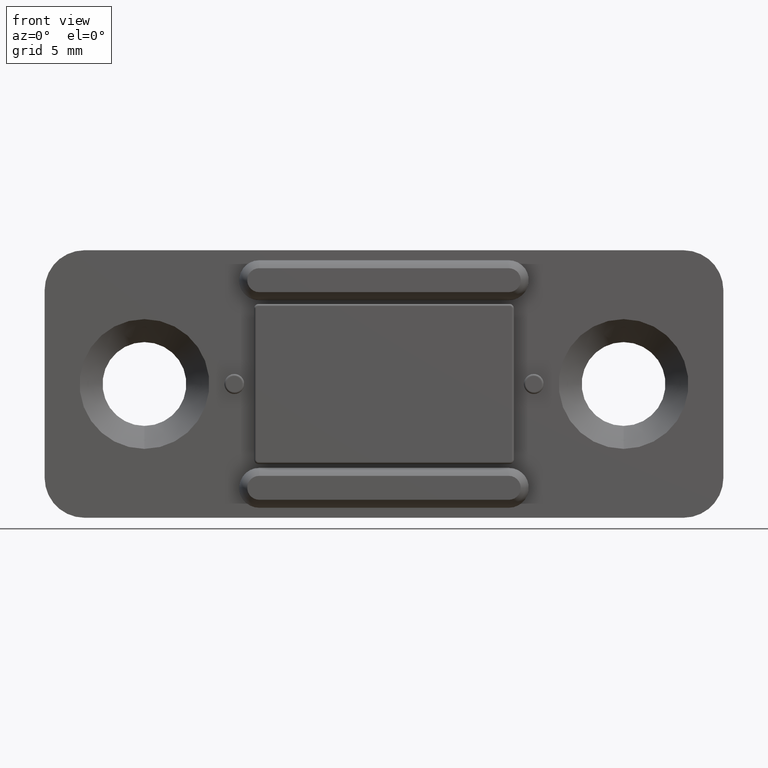
[diagram: clean part render]
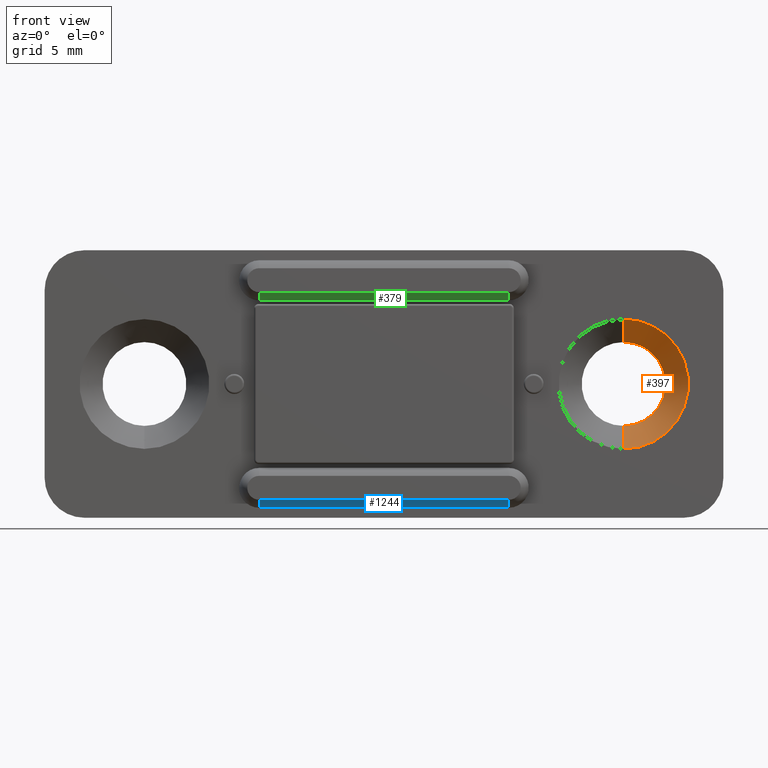
[diagram: same view with three faces highlighted in distinct colors, each labeled with its STEP entity id]
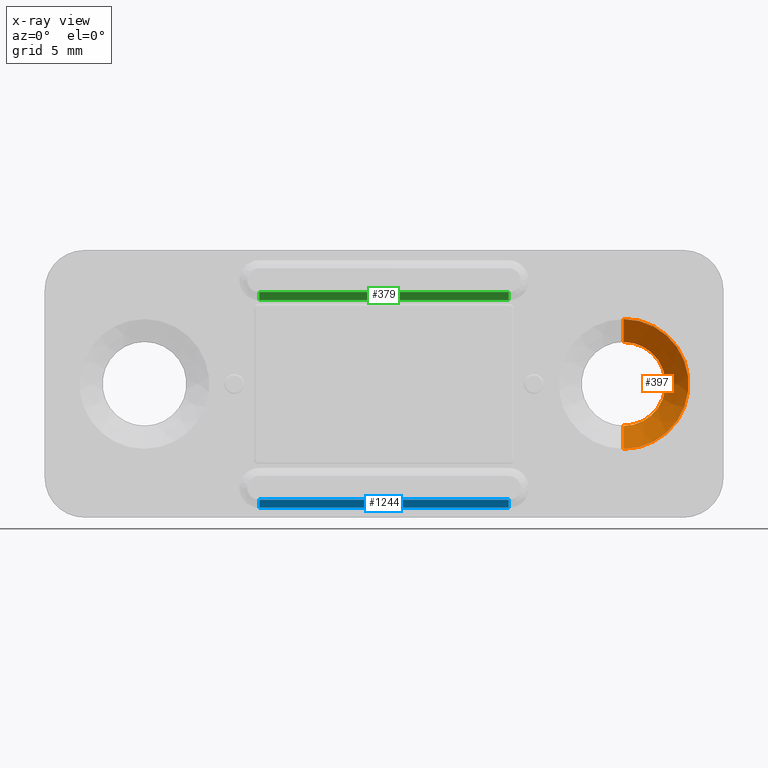
[diagram: x-ray of the same camera — body ghosted, the three highlighted faces saturated]
A machine part, front view with three faces highlighted in distinct colors.
The next image is the same camera in x-ray (body ghosted, the three faces saturated) — at least one of them is partly hidden behind the body in this view.
Their STEP definitions:

[orange] entity #397 — the highlighted conical surface has half-angle 45 deg.
#85 = CARTESIAN_POINT ( 'NONE',  ( 12.00000000000000000, 0.0000000000000000000, 0.0000000000000000000 ) ) ;
#223 = ORIENTED_EDGE ( 'NONE', *, *, #767, .T. ) ;
#287 = ORIENTED_EDGE ( 'NONE', *, *, #596, .F. ) ;
#397 = ADVANCED_FACE ( 'NONE', ( #1184 ), #1134, .F. ) ;
#596 = EDGE_CURVE ( 'NONE', #635, #1140, #1213, .T. ) ;
#635 = VERTEX_POINT ( 'NONE', #1943 ) ;
#767 = EDGE_CURVE ( 'NONE', #947, #1140, #1297, .T. ) ;
#791 = CARTESIAN_POINT ( 'NONE',  ( 12.00000000000000000, 1.150000000000289900, -2.100000000003889900 ) ) ;
#851 = VECTOR ( 'NONE', #937, 999.9999999999998900 ) ;
#863 = CARTESIAN_POINT ( 'NONE',  ( 12.00000000000000000, 0.0000000000000000000, -3.250000000004204600 ) ) ;
#926 = CARTESIAN_POINT ( 'NONE',  ( 12.00000000000000000, 1.150000000000289900, 2.100000000003889900 ) ) ;
#937 = DIRECTION ( 'NONE',  ( 0.0000000000000000000, -0.7071067811865391400, -0.7071067811865560100 ) ) ;
#947 = VERTEX_POINT ( 'NONE', #791 ) ;
#977 = ORIENTED_EDGE ( 'NONE', *, *, #1883, .F. ) ;
#1046 = DIRECTION ( 'NONE',  ( 0.0000000000000000000, 1.000000000000000000, 0.0000000000000000000 ) ) ;
#1134 = CONICAL_SURFACE ( 'NONE', #2095, 3.250000000004204600, 0.7853981633974602700 ) ;
#1140 = VERTEX_POINT ( 'NONE', #863 ) ;
#1164 = EDGE_CURVE ( 'NONE', #1625, #947, #1451, .T. ) ;
#1173 = DIRECTION ( 'NONE',  ( 8.659560562355037600E-017, -0.7071067811865391400, 0.7071067811865560100 ) ) ;
#1184 = FACE_OUTER_BOUND ( 'NONE', #2017, .T. ) ;
#1197 = VECTOR ( 'NONE', #1173, 999.9999999999998900 ) ;
#1201 = CARTESIAN_POINT ( 'NONE',  ( 12.00000000000000000, 0.0000000000000000000, -3.250000000004204600 ) ) ;
#1213 = CIRCLE ( 'NONE', #1817, 3.250000000004204600 ) ;
#1231 = DIRECTION ( 'NONE',  ( 0.0000000000000000000, 0.0000000000000000000, 1.000000000000000000 ) ) ;
#1234 = CARTESIAN_POINT ( 'NONE',  ( 12.00000000000000000, 0.0000000000000000000, 0.0000000000000000000 ) ) ;
#1241 = ORIENTED_EDGE ( 'NONE', *, *, #1164, .T. ) ;
#1297 = LINE ( 'NONE', #1201, #851 ) ;
#1341 = CARTESIAN_POINT ( 'NONE',  ( 12.00000000000000000, 0.0000000000000000000, 3.250000000004204600 ) ) ;
#1451 = CIRCLE ( 'NONE', #2078, 2.100000000003889900 ) ;
#1550 = CARTESIAN_POINT ( 'NONE',  ( 12.00000000000000000, 1.150000000000289900, 0.0000000000000000000 ) ) ;
#1625 = VERTEX_POINT ( 'NONE', #926 ) ;
#1655 = LINE ( 'NONE', #1341, #1197 ) ;
#1746 = DIRECTION ( 'NONE',  ( 0.0000000000000000000, -1.000000000000000000, 0.0000000000000000000 ) ) ;
#1764 = DIRECTION ( 'NONE',  ( 0.0000000000000000000, 0.0000000000000000000, -1.000000000000000000 ) ) ;
#1817 = AXIS2_PLACEMENT_3D ( 'NONE', #85, #2105, #1231 ) ;
#1883 = EDGE_CURVE ( 'NONE', #1625, #635, #1655, .T. ) ;
#1937 = DIRECTION ( 'NONE',  ( 0.0000000000000000000, 0.0000000000000000000, 1.000000000000000000 ) ) ;
#1943 = CARTESIAN_POINT ( 'NONE',  ( 12.00000000000000000, 0.0000000000000000000, 3.250000000004204600 ) ) ;
#2017 = EDGE_LOOP ( 'NONE', ( #977, #1241, #223, #287 ) ) ;
#2078 = AXIS2_PLACEMENT_3D ( 'NONE', #1550, #1046, #1937 ) ;
#2095 = AXIS2_PLACEMENT_3D ( 'NONE', #1234, #1746, #1764 ) ;
#2105 = DIRECTION ( 'NONE',  ( 0.0000000000000000000, 1.000000000000000000, 0.0000000000000000000 ) ) ;

[blue] entity #1244 — the highlighted cylindrical surface (edge-blend (fillet) strip) has radius 1 mm, axis along (-1, 0, 0).
#12 = VECTOR ( 'NONE', #516, 1000.000000000000000 ) ;
#15 = VERTEX_POINT ( 'NONE', #520 ) ;
#56 = CARTESIAN_POINT ( 'NONE',  ( 6.249999999999889900, -0.3999999999991815100, -6.200000000000000200 ) ) ;
#180 = CIRCLE ( 'NONE', #805, 1.000000000000000000 ) ;
#198 = DIRECTION ( 'NONE',  ( -1.000000000000000000, 0.0000000000000000000, 0.0000000000000000000 ) ) ;
#253 = VERTEX_POINT ( 'NONE', #56 ) ;
#395 = ORIENTED_EDGE ( 'NONE', *, *, #1606, .F. ) ;
#431 = CARTESIAN_POINT ( 'NONE',  ( -6.250000000000000000, -1.200000000000045900, -5.799999999998839900 ) ) ;
#516 = DIRECTION ( 'NONE',  ( -1.000000000000000000, -0.0000000000000000000, -0.0000000000000000000 ) ) ;
#520 = CARTESIAN_POINT ( 'NONE',  ( -6.250000000000000000, -0.3999999999991815100, -6.200000000000000200 ) ) ;
#551 = EDGE_CURVE ( 'NONE', #253, #15, #603, .T. ) ;
#603 = LINE ( 'NONE', #1516, #12 ) ;
#609 = CARTESIAN_POINT ( 'NONE',  ( 0.0000000000000000000, -1.200000000000045900, -5.799999999998839900 ) ) ;
#654 = ORIENTED_EDGE ( 'NONE', *, *, #551, .F. ) ;
#799 = FACE_OUTER_BOUND ( 'NONE', #1217, .T. ) ;
#805 = AXIS2_PLACEMENT_3D ( 'NONE', #844, #854, #817 ) ;
#817 = DIRECTION ( 'NONE',  ( 0.0000000000000000000, 0.0000000000000000000, -1.000000000000000000 ) ) ;
#820 = EDGE_CURVE ( 'NONE', #836, #2069, #1754, .T. ) ;
#836 = VERTEX_POINT ( 'NONE', #431 ) ;
#844 = CARTESIAN_POINT ( 'NONE',  ( 6.249999999999889900, -0.3999999999991815100, -5.200000000000000200 ) ) ;
#854 = DIRECTION ( 'NONE',  ( 1.000000000000000000, 0.0000000000000000000, 0.0000000000000000000 ) ) ;
#1010 = ORIENTED_EDGE ( 'NONE', *, *, #1897, .T. ) ;
#1089 = DIRECTION ( 'NONE',  ( 1.000000000000000000, -0.0000000000000000000, -0.0000000000000000000 ) ) ;
#1179 = DIRECTION ( 'NONE',  ( 0.0000000000000000000, 0.0000000000000000000, 1.000000000000000000 ) ) ;
#1189 = DIRECTION ( 'NONE',  ( 8.673617379884035500E-016, -1.000000000000000000, 8.673617379884035500E-016 ) ) ;
#1199 = CARTESIAN_POINT ( 'NONE',  ( -6.250000000000000000, -0.3999999999991815100, -5.200000000000000200 ) ) ;
#1216 = AXIS2_PLACEMENT_3D ( 'NONE', #1918, #198, #1179 ) ;
#1217 = EDGE_LOOP ( 'NONE', ( #1460, #1010, #654, #395 ) ) ;
#1244 = ADVANCED_FACE ( 'NONE', ( #799 ), #1639, .T. ) ;
#1246 = VECTOR ( 'NONE', #1089, 1000.000000000000000 ) ;
#1437 = AXIS2_PLACEMENT_3D ( 'NONE', #1199, #1592, #1189 ) ;
#1460 = ORIENTED_EDGE ( 'NONE', *, *, #820, .F. ) ;
#1516 = CARTESIAN_POINT ( 'NONE',  ( -7.249999999999430700, -0.3999999999991815100, -6.200000000000000200 ) ) ;
#1592 = DIRECTION ( 'NONE',  ( 1.000000000000000000, 8.673617379884039400E-016, -0.0000000000000000000 ) ) ;
#1606 = EDGE_CURVE ( 'NONE', #2069, #253, #180, .T. ) ;
#1639 = CYLINDRICAL_SURFACE ( 'NONE', #1216, 1.000000000000000000 ) ;
#1754 = LINE ( 'NONE', #609, #1246 ) ;
#1897 = EDGE_CURVE ( 'NONE', #836, #15, #2073, .T. ) ;
#1918 = CARTESIAN_POINT ( 'NONE',  ( 0.0000000000000000000, -0.3999999999991815100, -5.200000000000000200 ) ) ;
#2069 = VERTEX_POINT ( 'NONE', #2088 ) ;
#2073 = CIRCLE ( 'NONE', #1437, 1.000000000000000000 ) ;
#2088 = CARTESIAN_POINT ( 'NONE',  ( 6.249999999999889900, -1.200000000000045900, -5.799999999998839900 ) ) ;

[green] entity #379 — the highlighted cylindrical surface (edge-blend (fillet) strip) has radius 1 mm, axis along (1, 0, 0).
#2 = EDGE_CURVE ( 'NONE', #1182, #1135, #274, .T. ) ;
#27 = ORIENTED_EDGE ( 'NONE', *, *, #686, .F. ) ;
#105 = AXIS2_PLACEMENT_3D ( 'NONE', #2056, #331, #1094 ) ;
#123 = CARTESIAN_POINT ( 'NONE',  ( -7.250000000000570200, -0.3999999999991790100, 4.200000000000000200 ) ) ;
#156 = ORIENTED_EDGE ( 'NONE', *, *, #730, .F. ) ;
#247 = DIRECTION ( 'NONE',  ( -1.000000000000000000, 0.0000000000000000000, 0.0000000000000000000 ) ) ;
#274 = CIRCLE ( 'NONE', #105, 1.000000000000000000 ) ;
#298 = LINE ( 'NONE', #123, #1505 ) ;
#309 = VERTEX_POINT ( 'NONE', #1036 ) ;
#326 = EDGE_LOOP ( 'NONE', ( #827, #1825, #156, #27 ) ) ;
#331 = DIRECTION ( 'NONE',  ( -1.000000000000000000, 1.734723475976805100E-015, -0.0000000000000000000 ) ) ;
#379 = ADVANCED_FACE ( 'NONE', ( #417 ), #2118, .T. ) ;
#417 = FACE_OUTER_BOUND ( 'NONE', #326, .T. ) ;
#528 = AXIS2_PLACEMENT_3D ( 'NONE', #1399, #247, #1050 ) ;
#611 = LINE ( 'NONE', #777, #949 ) ;
#686 = EDGE_CURVE ( 'NONE', #1182, #309, #298, .T. ) ;
#710 = CARTESIAN_POINT ( 'NONE',  ( 6.250000000000000000, -0.3999999999991790100, 4.200000000000000200 ) ) ;
#730 = EDGE_CURVE ( 'NONE', #309, #1028, #960, .T. ) ;
#777 = CARTESIAN_POINT ( 'NONE',  ( -7.249999999999430700, -1.200000000000045900, 4.600000000001170300 ) ) ;
#827 = ORIENTED_EDGE ( 'NONE', *, *, #2, .T. ) ;
#949 = VECTOR ( 'NONE', #2014, 1000.000000000000000 ) ;
#960 = CIRCLE ( 'NONE', #528, 1.000000000000000000 ) ;
#1028 = VERTEX_POINT ( 'NONE', #1095 ) ;
#1036 = CARTESIAN_POINT ( 'NONE',  ( -6.250000000000110100, -0.3999999999991790100, 4.200000000000000200 ) ) ;
#1050 = DIRECTION ( 'NONE',  ( 0.0000000000000000000, 0.0000000000000000000, 1.000000000000000000 ) ) ;
#1053 = CARTESIAN_POINT ( 'NONE',  ( -7.249999999999430700, -0.3999999999991790100, 5.200000000000000200 ) ) ;
#1094 = DIRECTION ( 'NONE',  ( 1.734723475976807100E-015, 1.000000000000000000, 8.673617379884035500E-016 ) ) ;
#1095 = CARTESIAN_POINT ( 'NONE',  ( -6.250000000000110100, -1.200000000000045900, 4.600000000001170300 ) ) ;
#1135 = VERTEX_POINT ( 'NONE', #1887 ) ;
#1182 = VERTEX_POINT ( 'NONE', #710 ) ;
#1227 = DIRECTION ( 'NONE',  ( 0.0000000000000000000, 0.0000000000000000000, -1.000000000000000000 ) ) ;
#1399 = CARTESIAN_POINT ( 'NONE',  ( -6.250000000000110100, -0.3999999999991815100, 5.200000000000000200 ) ) ;
#1505 = VECTOR ( 'NONE', #2147, 1000.000000000000000 ) ;
#1740 = DIRECTION ( 'NONE',  ( 1.000000000000000000, 0.0000000000000000000, 0.0000000000000000000 ) ) ;
#1825 = ORIENTED_EDGE ( 'NONE', *, *, #2029, .T. ) ;
#1887 = CARTESIAN_POINT ( 'NONE',  ( 6.250000000000000000, -1.200000000000045900, 4.600000000001170300 ) ) ;
#1981 = AXIS2_PLACEMENT_3D ( 'NONE', #1053, #1740, #1227 ) ;
#2014 = DIRECTION ( 'NONE',  ( -1.000000000000000000, -0.0000000000000000000, -0.0000000000000000000 ) ) ;
#2029 = EDGE_CURVE ( 'NONE', #1135, #1028, #611, .T. ) ;
#2056 = CARTESIAN_POINT ( 'NONE',  ( 6.250000000000000000, -0.3999999999991790100, 5.200000000000000200 ) ) ;
#2118 = CYLINDRICAL_SURFACE ( 'NONE', #1981, 1.000000000000000000 ) ;
#2147 = DIRECTION ( 'NONE',  ( -1.000000000000000000, -0.0000000000000000000, -0.0000000000000000000 ) ) ;